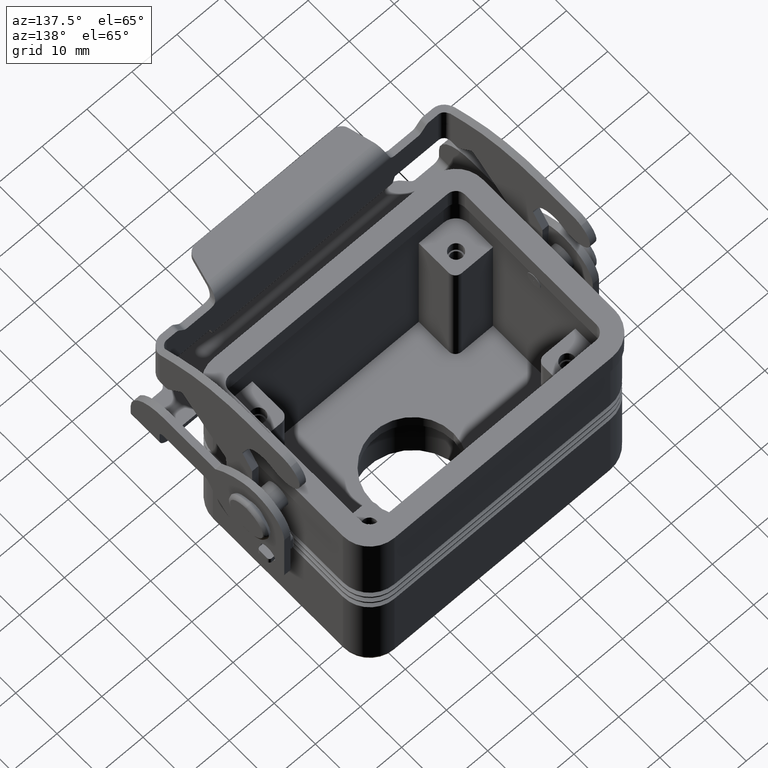
[diagram: clean part render]
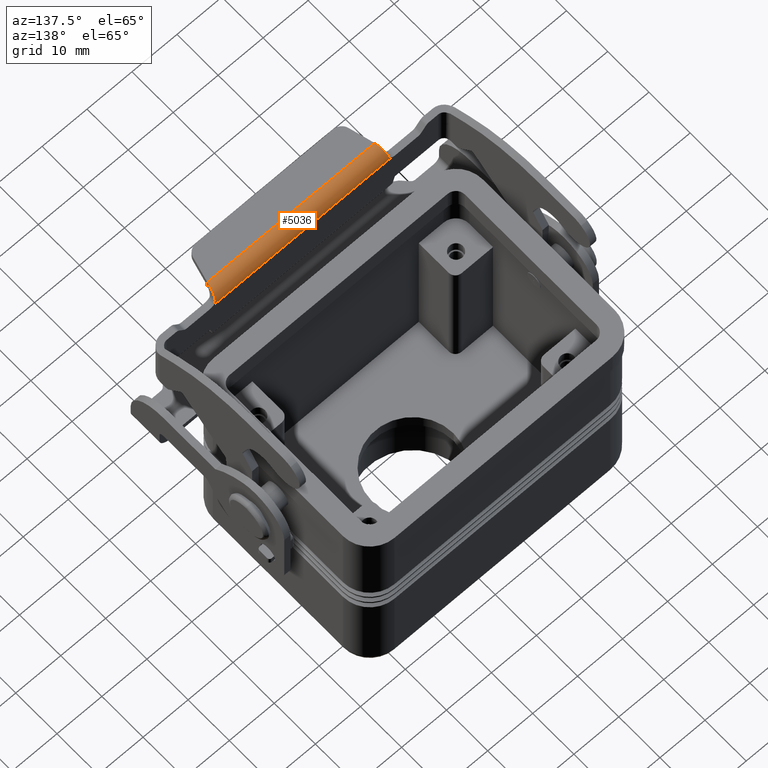
[diagram: same view with one face highlighted and labeled with its STEP entity id]
A machine part, auxiliary view. The second image highlights one B-rep face of the part: STEP entity #5036.
In plain terms, the highlighted cylindrical surface (edge-blend (fillet) strip) has radius 2.8 mm, axis along (1, 0, 0).
Its self-contained STEP definition (entity closure, byte-faithful):
#2634=CARTESIAN_POINT('',(-19.284473957975642,-26.931444833513076,16.724068965126982));
#2635=VERTEX_POINT('',#2634);
#2636=CARTESIAN_POINT('',(-18.622213074482193,-29.566637302590777,18.577622637585787));
#2637=VERTEX_POINT('',#2636);
#2638=CARTESIAN_POINT('',(-19.284473957975642,-26.931444833513076,16.724068965126982));
#2639=CARTESIAN_POINT('',(-19.212806542193480,-27.057011528234266,17.073684573183591));
#2640=CARTESIAN_POINT('',(-19.141839399025297,-27.250908068481987,17.394841296550162));
#2641=CARTESIAN_POINT('',(-18.998526559298998,-27.752639316032315,17.942645786823373));
#2642=CARTESIAN_POINT('',(-18.927580603388179,-28.055462292380405,18.163888342681400));
#2643=CARTESIAN_POINT('',(-18.816943394238173,-28.576093313526648,18.404345097765749));
#2644=CARTESIAN_POINT('',(-18.778065557127174,-28.768215706535408,18.468973828730771));
#2645=CARTESIAN_POINT('',(-18.700082377993070,-29.163012204317699,18.555739770204511));
#2646=CARTESIAN_POINT('',(-18.661204646158328,-29.364528373992439,18.577622637585790));
#2647=CARTESIAN_POINT('',(-18.622213074482190,-29.566637302590777,18.577622637585790));
#2648=B_SPLINE_CURVE_WITH_KNOTS('',3,(#2638,#2639,#2640,#2641,#2642,#2643,#2644,#2645,#2646,#2647),.UNSPECIFIED.,.F.,.U.,(4,2,2,2,4),(0.0,0.113499276664832,0.226963944834320,0.288714868332620,0.350465597862947),.UNSPECIFIED.);
#2649=EDGE_CURVE('',#2635,#2637,#2648,.T.);
#2852=CARTESIAN_POINT('',(-19.695901726643559,-26.766637302590773,15.777622637585793));
#2853=VERTEX_POINT('',#2852);
#2854=CARTESIAN_POINT('',(-19.695901726643559,-26.766637302590777,15.777622637585795));
#2855=CARTESIAN_POINT('',(-19.644685676905876,-26.766637302590777,15.845992971068448));
#2856=CARTESIAN_POINT('',(-19.531346789385747,-26.765869653815169,16.007145755590162));
#2857=CARTESIAN_POINT('',(-19.384714879586479,-26.824745681639307,16.356810776409901));
#2858=CARTESIAN_POINT('',(-19.326834739173432,-26.857378276711540,16.517845297694098));
#2859=CARTESIAN_POINT('',(-19.284473957975653,-26.931444833513076,16.724068965126982));
#2860=B_SPLINE_CURVE_WITH_KNOTS('',3,(#2854,#2855,#2856,#2857,#2858,#2859),.UNSPECIFIED.,.F.,.U.,(4,2,4),(0.0,0.025627773266782,0.038069002987880),.UNSPECIFIED.);
#2861=EDGE_CURVE('',#2853,#2635,#2860,.T.);
#4603=CARTESIAN_POINT('',(19.695901726643530,-26.766637302590766,15.777622637585802));
#4604=VERTEX_POINT('',#4603);
#4605=CARTESIAN_POINT('',(-19.695901726643559,-26.766637302590773,15.777622637585793));
#4606=DIRECTION('',(1.0,0.0,0.0));
#4607=VECTOR('',#4606,39.391803453287089);
#4608=LINE('',#4605,#4607);
#4609=EDGE_CURVE('',#2853,#4604,#4608,.T.);
#4861=CARTESIAN_POINT('',(19.284473957975642,-26.931444833513069,16.724068965126971));
#4862=VERTEX_POINT('',#4861);
#4863=CARTESIAN_POINT('',(19.284473957975642,-26.931444833513069,16.724068965126971));
#4864=CARTESIAN_POINT('',(19.326834739150179,-26.857378276752119,16.517845297807099));
#4865=CARTESIAN_POINT('',(19.384714879519642,-26.824745681680966,16.356810776600902));
#4866=CARTESIAN_POINT('',(19.531346789314441,-26.765869653813233,16.007145755694985));
#4867=CARTESIAN_POINT('',(19.644685676884340,-26.766637302590766,15.845992971097109));
#4868=CARTESIAN_POINT('',(19.695901726643527,-26.766637302590766,15.777622637585802));
#4869=B_SPLINE_CURVE_WITH_KNOTS('',3,(#4863,#4864,#4865,#4866,#4867,#4868),.UNSPECIFIED.,.F.,.U.,(4,2,4),(0.0,0.066953448318587,0.204871309555239),.UNSPECIFIED.);
#4870=EDGE_CURVE('',#4862,#4604,#4869,.T.);
#4984=CARTESIAN_POINT('',(18.622213074482179,-29.566637302590770,18.577622637585797));
#4985=VERTEX_POINT('',#4984);
#4986=CARTESIAN_POINT('',(18.622213074482179,-29.566637302590770,18.577622637585801));
#4987=CARTESIAN_POINT('',(18.693880490264355,-29.195156390268270,18.577622637585797));
#4988=CARTESIAN_POINT('',(18.764847633432524,-28.827362659107642,18.503695101426686));
#4989=CARTESIAN_POINT('',(18.908160473158841,-28.142208386267754,18.216662652492406));
#4990=CARTESIAN_POINT('',(18.979106429069653,-27.831628953804767,18.006447430260785));
#4991=CARTESIAN_POINT('',(19.089743638219666,-27.429343543767235,17.597739025506886));
#4992=CARTESIAN_POINT('',(19.128621475330661,-27.303578301472029,17.438770504748906));
#4993=CARTESIAN_POINT('',(19.206604654464762,-27.088471640402002,17.096539986495152));
#4994=CARTESIAN_POINT('',(19.245482386299479,-26.999760995382790,16.914281796046918));
#4995=CARTESIAN_POINT('',(19.284473957975635,-26.931444833513062,16.724068965126975));
#4996=B_SPLINE_CURVE_WITH_KNOTS('',3,(#4986,#4987,#4988,#4989,#4990,#4991,#4992,#4993,#4994,#4995),.UNSPECIFIED.,.F.,.U.,(4,2,2,2,4),(0.0,0.113499276664817,0.226963944834284,0.288714868332570,0.350465597862880),.UNSPECIFIED.);
#4997=EDGE_CURVE('',#4985,#4862,#4996,.T.);
#5018=CARTESIAN_POINT('',(10.214632212026373,-29.566637302590770,15.777622637585802));
#5019=DIRECTION('',(1.0,2.220446E-016,1.212490E-016));
#5020=DIRECTION('',(0.0,1.0,0.0));
#5021=AXIS2_PLACEMENT_3D('',#5018,#5019,#5020);
#5022=CYLINDRICAL_SURFACE('',#5021,2.800000000000003);
#5023=CARTESIAN_POINT('',(18.622213074482179,-29.566637302590770,18.577622637585797));
#5024=DIRECTION('',(-1.0,0.0,0.0));
#5025=VECTOR('',#5024,37.244426148964372);
#5026=LINE('',#5023,#5025);
#5027=EDGE_CURVE('',#4985,#2637,#5026,.T.);
#5028=ORIENTED_EDGE('',*,*,#5027,.F.);
#5029=ORIENTED_EDGE('',*,*,#4997,.T.);
#5030=ORIENTED_EDGE('',*,*,#4870,.T.);
#5031=ORIENTED_EDGE('',*,*,#4609,.F.);
#5032=ORIENTED_EDGE('',*,*,#2861,.T.);
#5033=ORIENTED_EDGE('',*,*,#2649,.T.);
#5034=EDGE_LOOP('',(#5028,#5029,#5030,#5031,#5032,#5033));
#5035=FACE_OUTER_BOUND('',#5034,.T.);
#5036=ADVANCED_FACE('',(#5035),#5022,.T.);